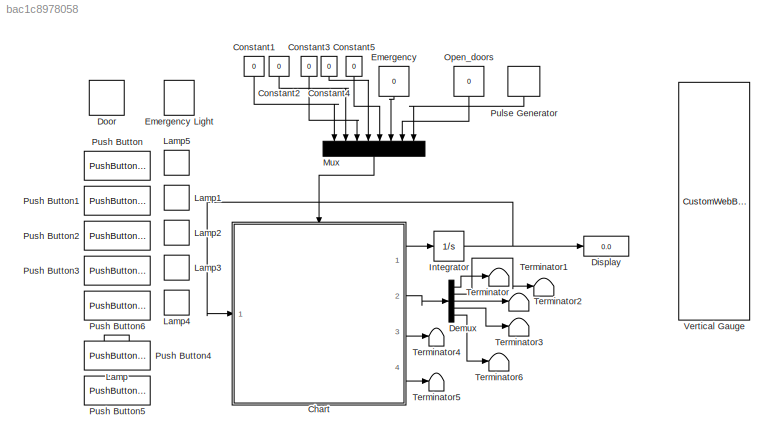
MODEL slx_bac1c8978058
KIND model
CONFIG AbsTol = auto
CONFIG EnableMultiTasking = off
CONFIG FixedStep = 0.1
CONFIG MaxStep = auto
CONFIG MinStep = auto
CONFIG RelTol = 1e-3
CONFIG SampleTimeConstraint = Unconstrained
CONFIG Solver = FixedStepAuto
CONFIG SolverName = FixedStepAuto
CONFIG StartTime = 0.0
CONFIG StopTime = inf
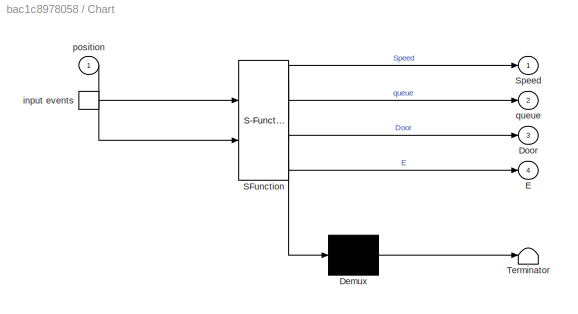
BLOCK [SubSystem] Chart
  ErrorFcn = Stateflow.Translate.translate
  PermitHierarchicalResolution = ExplicitOnly
  Ports = [1, 4, 0, 1]
  RequestExecContextInheritance = off
  SFBlockType = Chart
  TreatAsAtomicUnit = on
BLOCK [Demux] Chart/ Demux 
  Outputs = 1
  Ports = [1, 1]
BLOCK [S-Function] Chart/ SFunction 
  EnableBusSupport = on
  FunctionName = sf_sfun
  PortCounts = [2 5]
  Ports = [2, 5]
  SFcnIsStateOwnerBlock = off
  SFunctionDeploymentMode = off
  Tag = Stateflow S-Function 3
BLOCK [Terminator] Chart/ Terminator 
BLOCK [Outport] Chart/Door
  Port = 3
BLOCK [Outport] Chart/E
  Port = 4
BLOCK [Outport] Chart/Speed
BLOCK [TriggerPort] Chart/input events
  Ports = [0, 1]
  ShowOutputPort = on
  StatesWhenEnabling = held
  VariantControl = (inherit)
BLOCK [Inport] Chart/position
BLOCK [Outport] Chart/queue
  Port = 2
BLOCK [Constant] Constant1
  NameLocation = left
  Value = 0
BLOCK [Constant] Constant2
  NameLocation = left
  Value = 0
BLOCK [Constant] Constant3
  NameLocation = left
  Value = 0
BLOCK [Constant] Constant4
  NameLocation = left
  Value = 0
BLOCK [Constant] Constant5
  NameLocation = left
  Value = 0
BLOCK [Demux] Demux
  Outputs = 5
  Ports = [1, 5]
BLOCK [Display] Display
  Decimation = 1
  Ports = [1]
BLOCK [LampBlock] Door
BLOCK [Constant] Emergency
  NameLocation = top
  Value = 0
BLOCK [LampBlock] Emergency Light
BLOCK [Integrator] Integrator
  Ports = [1, 1]
BLOCK [LampBlock] Lamp
BLOCK [LampBlock] Lamp1
BLOCK [LampBlock] Lamp2
BLOCK [LampBlock] Lamp3
BLOCK [LampBlock] Lamp4
BLOCK [LampBlock] Lamp5
BLOCK [Mux] Mux
  DisplayOption = bar
  Inputs = 8
  NameLocation = left
  Ports = [8, 1]
BLOCK [Constant] Open_doors
  NameLocation = top
  Value = 0
BLOCK [DiscretePulseGenerator] Pulse Generator
  NameLocation = left
  Period = 1
  Ports = [0, 1]
  PulseType = Time based
  PulseWidth = 50
BLOCK [PushButtonBlock] Push Button
  ButtonText = floor0
BLOCK [PushButtonBlock] Push Button1
  ButtonText = floor1
BLOCK [PushButtonBlock] Push Button2
  ButtonText = floor2
BLOCK [PushButtonBlock] Push Button3
  ButtonText = floor3
BLOCK [PushButtonBlock] Push Button4
  ButtonText = Emergency
BLOCK [PushButtonBlock] Push Button5
  ButtonText = Open_doors
BLOCK [PushButtonBlock] Push Button6
  ButtonText = floor4
BLOCK [Terminator] Terminator
BLOCK [Terminator] Terminator1
BLOCK [Terminator] Terminator2
BLOCK [Terminator] Terminator3
BLOCK [Terminator] Terminator4
BLOCK [Terminator] Terminator5
BLOCK [Terminator] Terminator6
BLOCK [CustomWebBlock] Vertical Gauge
  Configuration = {"components":[{"name":"LinearScaleComponent","settings":{"bounds":{"max":4,"min":0,"tickInterval":"auto"},"labelColor":[250,245,199],"labelFont":{"font":"Arial","fontSize":12},"labelTransparency":1,"needleImage":{"size":[21,75],"src":"data:image\/svg+xml;base64,PHN2ZyB4bWxucz0iaHR0cDovL3d3dy53My5vcmcvMjAwMC9zdmciIHhtbG5zOnhsaW5rPSJodHRwOi8vd3d3LnczLm9yZy8xOTk5L3hsaW5rIiB2aWV3Qm94PSIwIDAgMjEgNzUiP...<+5497ch>
  ShowInitialText = on
LINE Chart:1 -> Integrator:1
LINE Chart:2 -> Demux:1
LINE Chart:3 -> Terminator4:1
LINE Chart:4 -> Terminator5:1
LINE Constant1:1 -> Mux:1
LINE Constant2:1 -> Mux:2
LINE Constant3:1 -> Mux:3
LINE Constant4:1 -> Mux:4
LINE Constant5:1 -> Mux:5
LINE Demux:1 -> Terminator:1
LINE Demux:2 -> Terminator1:1
LINE Demux:3 -> Terminator2:1
LINE Demux:4 -> Terminator3:1
LINE Demux:5 -> Terminator6:1
LINE Emergency:1 -> Mux:6
NET Integrator:1 -> Chart:1, Display:1
LINE Mux:1 -> Chart:trigger
LINE Open_doors:1 -> Mux:7
LINE Pulse Generator:1 -> Mux:8
note: NET lines group one-source signal fan-out (src -> all destinations, sorted); 1:1 wires keep LINE
CHART Chart states=9 transitions=17
  STATE_LABEL 'out = floor_check'
  STATE_LABEL 'SCRIPT:\nfunction out = floor_check\nif dir>0\n    if queue(2)&& position<1\n        dest=2;\n        out=1;  \n    elseif queue(3) && position<2\n        dest=3;\n        out=1;\n    elseif queue(4)&& position<3\n        dest=4;\n        out=1;\n    elseif queue(5) && position~=4\n        dest=5;\n        out=1;\n    else\n        dir=0;\n        out=-1;\n    end\nelseif dir<0\n    if queue(4)&& position>3\n        d...<+1079ch>'
  STATE_LABEL 'Error_check'
  STATE_LABEL 'SCRIPT:\nfunction Error_check\ncur_pos=position;\nif position>4.1 && position<0\n    Speed=0;\n    Door=0;\nelseif (position==cur_pos + 0.5) || (position == cur_pos - 0.5)\n     Speed=0;\n     Door=0;\nelseif (Speed>0 || Speed<0) && Door==1\n    Speed=0;\n    Door=0;\nend\n        \n\n \n'
  STATE_LABEL 'o=current_floor'
  STATE_LABEL 'SCRIPT:\nfunction o=current_floor\nif dir==0\n    if queue(1) && queue(2)==0 && queue(3)==0 && queue(4)==0 && queue(5)==0 && position<1 && position>=0\n        o=1;\n        dest=1;\n    elseif queue(1)==0 && queue(2) && queue(3)==0 && queue(4)==0 && queue(5)==0 && position<2 && position>=1\n        o=1;\n        dest=2;\n    elseif queue(1)==0 && queue(2)==0 && queue(3) && queue(4)==0 && queue(5)==0 && po...<+362ch>'
  STATE_LABEL 'Init\non floor0: queue(1)=1;\non floor1: queue(2)=1;\non floor2: queue(3)=1;\non floor3: queue(4)=1;\non floor4: queue(5)=1;\non Open_doors: open_door=1;\ndu: Error_check();'
  STATE_LABEL 'Up\nSpeed=0.2;\ndir=1;\nfloor_check();'
  STATE_LABEL 'Door\nDoor=1;queue(dest)=0;\n'
  STATE_LABEL 'Idle_state\n'
  STATE_LABEL 'Emergency\nSpeed=0;'
  STATE_LABEL 'Down\nSpeed=-0.2;\ndir=-1;\nfloor_check();'
  STATE_LABEL '[current_floor()==1 || (open_door==1 && Speed==0)]{open_door=0;}'
  STATE_LABEL '[position>=dest-1.05]{Speed=0;}'
  STATE_LABEL '[floor_check==1]'
  STATE_LABEL 'Emergency{u=1;E=1;}'
  STATE_LABEL 'Emergency[u==1]{u=0;E=0;}'
  STATE_LABEL '[open_door==1]{open_door=0;}'
  STATE_LABEL 'Emergency{do=1;E=1;}'
  STATE_LABEL 'Emergency{i=1;E=1;}'
  STATE_LABEL 'Emergency[do==1]{do=0;E=0;}'
  STATE_LABEL 'Emergency[i==1]{E=0;i=0;}'
  STATE_LABEL '[after(5,tic)]{Door=0;}'
  STATE_LABEL '[position<=dest-0.8]{Speed=0;}'
  STATE_LABEL 'Emergency{d=1;E=1;}'
  STATE_LABEL 'Emergency[d==1]{d=0;E=0;}'
  STATE_LABEL '[floor_check==0]'
  STATE_LABEL 'Up\nSpeed=0.2;\ndir=1;\nfloor_check();'
  STATE_LABEL 'Door\nDoor=1;queue(dest)=0;\n'
  STATE_LABEL 'Idle_state\n'
  STATE_LABEL 'Emergency\nSpeed=0;'
  STATE_LABEL 'Down\nSpeed=-0.2;\ndir=-1;\nfloor_check();'
CHART  states=0 transitions=0
